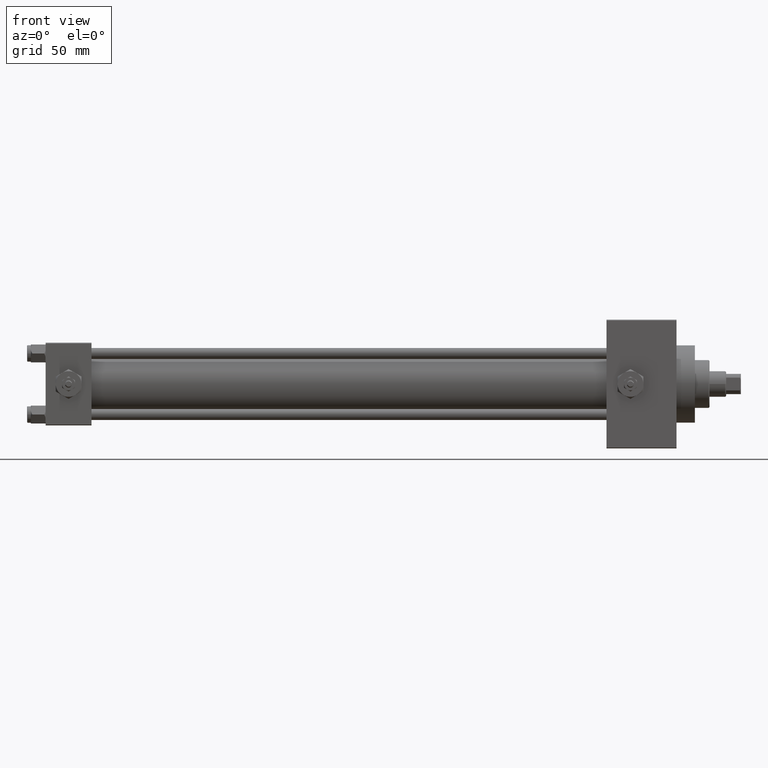
[diagram: clean part render]
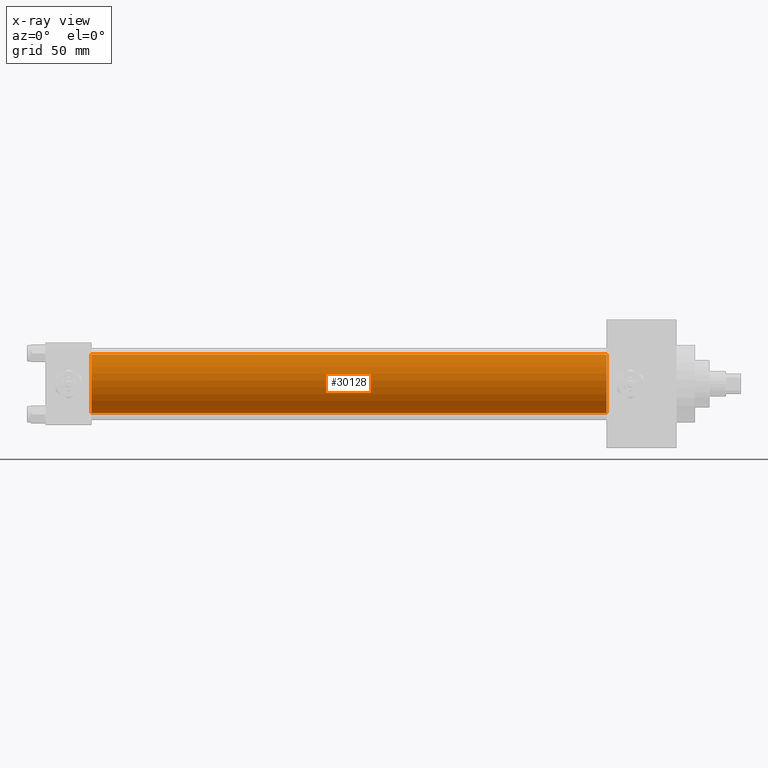
[diagram: x-ray — body ghosted, one internal face saturated and labeled with its STEP entity id]
A machine part, front view, then the same camera in x-ray: the body is ghosted and one INTERNAL B-rep face — a face not visible from any outside direction — is saturated and labeled: STEP entity #30128.
In plain terms, the highlighted cylindrical surface (edge-blend (fillet) strip) has radius 16 mm, axis along (-1, -0, -0).
Its self-contained STEP definition (entity closure, byte-faithful):
#4961 = EDGE_LOOP ( 'NONE', ( #14143, #8909, #14615, #30846 ) ) ;
#5485 = DIRECTION ( 'NONE',  ( 0.000000000000000000, 0.000000000000000000, -1.000000000000000000 ) ) ;
#5772 = VERTEX_POINT ( 'NONE', #45408 ) ;
#6575 = VERTEX_POINT ( 'NONE', #19579 ) ;
#6720 = CARTESIAN_POINT ( 'NONE',  ( 305.0000000000000568, -2.602085213965210642E-15, 0.000000000000000000 ) ) ;
#7950 = DIRECTION ( 'NONE',  ( -1.000000000000000000, -0.000000000000000000, -0.000000000000000000 ) ) ;
#8909 = ORIENTED_EDGE ( 'NONE', *, *, #13228, .T. ) ;
#9943 = FACE_OUTER_BOUND ( 'NONE', #4961, .T. ) ;
#13228 = EDGE_CURVE ( 'NONE', #6575, #42743, #18268, .T. ) ;
#13435 = DIRECTION ( 'NONE',  ( -1.000000000000000000, -0.000000000000000000, -0.000000000000000000 ) ) ;
#13739 = AXIS2_PLACEMENT_3D ( 'NONE', #6720, #13435, #43857 ) ;
#14143 = ORIENTED_EDGE ( 'NONE', *, *, #26715, .T. ) ;
#14615 = ORIENTED_EDGE ( 'NONE', *, *, #28883, .F. ) ;
#15180 = LINE ( 'NONE', #34364, #16971 ) ;
#16971 = VECTOR ( 'NONE', #7950, 1000.000000000000000 ) ;
#18268 = LINE ( 'NONE', #21759, #34712 ) ;
#19579 = CARTESIAN_POINT ( 'NONE',  ( 305.0000000000000568, -6.426503353294456087E-16, -16.00000000000000000 ) ) ;
#20551 = CARTESIAN_POINT ( 'NONE',  ( 25.00000000000000000, -2.602085213965210642E-15, 16.00000000000000000 ) ) ;
#20686 = CARTESIAN_POINT ( 'NONE',  ( 305.0000000000000568, -2.602085213965210642E-15, 0.000000000000000000 ) ) ;
#21422 = CYLINDRICAL_SURFACE ( 'NONE', #13739, 16.00000000000000000 ) ;
#21759 = CARTESIAN_POINT ( 'NONE',  ( 305.0000000000000568, -6.426503353294456087E-16, -16.00000000000000000 ) ) ;
#23970 = CARTESIAN_POINT ( 'NONE',  ( 25.00000000000000000, -6.426503353294456087E-16, -16.00000000000000000 ) ) ;
#24415 = DIRECTION ( 'NONE',  ( 1.000000000000000000, 0.000000000000000000, 0.000000000000000000 ) ) ;
#25480 = DIRECTION ( 'NONE',  ( -1.000000000000000000, -0.000000000000000000, -0.000000000000000000 ) ) ;
#26106 = DIRECTION ( 'NONE',  ( 1.000000000000000000, 0.000000000000000000, 0.000000000000000000 ) ) ;
#26404 = CIRCLE ( 'NONE', #38365, 16.00000000000000000 ) ;
#26715 = EDGE_CURVE ( 'NONE', #5772, #6575, #39076, .T. ) ;
#28883 = EDGE_CURVE ( 'NONE', #37258, #42743, #26404, .T. ) ;
#30128 = ADVANCED_FACE ( 'NONE', ( #9943 ), #21422, .F. ) ;
#30846 = ORIENTED_EDGE ( 'NONE', *, *, #31123, .F. ) ;
#31123 = EDGE_CURVE ( 'NONE', #5772, #37258, #15180, .T. ) ;
#34364 = CARTESIAN_POINT ( 'NONE',  ( 305.0000000000000568, -2.602085213965210642E-15, 16.00000000000000000 ) ) ;
#34712 = VECTOR ( 'NONE', #25480, 1000.000000000000000 ) ;
#37089 = CARTESIAN_POINT ( 'NONE',  ( 25.00000000000000000, -2.602085213965210642E-15, 0.000000000000000000 ) ) ;
#37258 = VERTEX_POINT ( 'NONE', #20551 ) ;
#38365 = AXIS2_PLACEMENT_3D ( 'NONE', #37089, #26106, #41328 ) ;
#39076 = CIRCLE ( 'NONE', #45467, 16.00000000000000000 ) ;
#41328 = DIRECTION ( 'NONE',  ( 0.000000000000000000, 0.000000000000000000, -1.000000000000000000 ) ) ;
#42743 = VERTEX_POINT ( 'NONE', #23970 ) ;
#43857 = DIRECTION ( 'NONE',  ( 0.000000000000000000, 0.000000000000000000, 1.000000000000000000 ) ) ;
#45408 = CARTESIAN_POINT ( 'NONE',  ( 305.0000000000000568, -2.602085213965210642E-15, 16.00000000000000000 ) ) ;
#45467 = AXIS2_PLACEMENT_3D ( 'NONE', #20686, #24415, #5485 ) ;